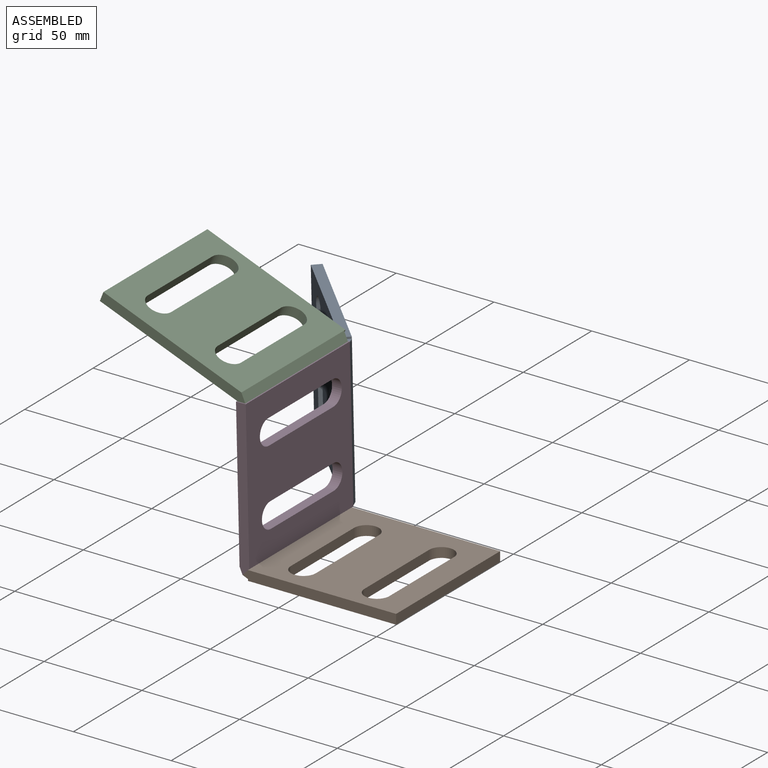
[diagram: assembled view]
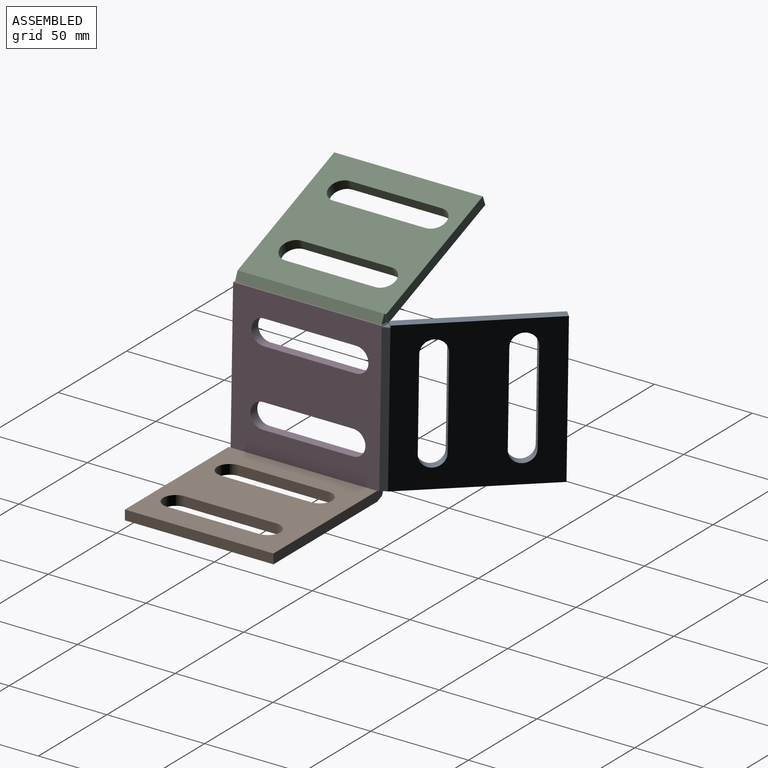
[diagram: assembled view, second angle]
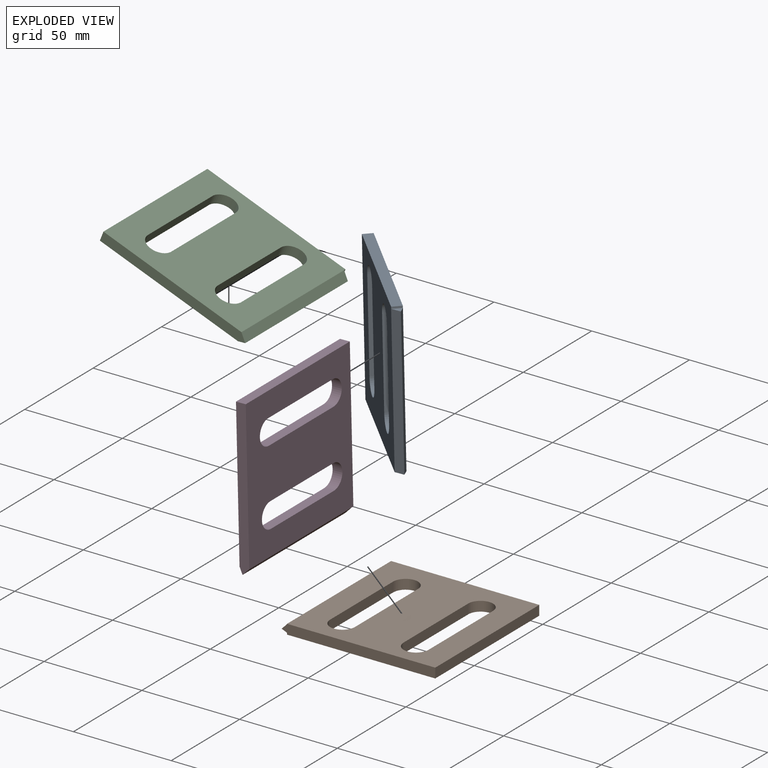
[diagram: exploded view]
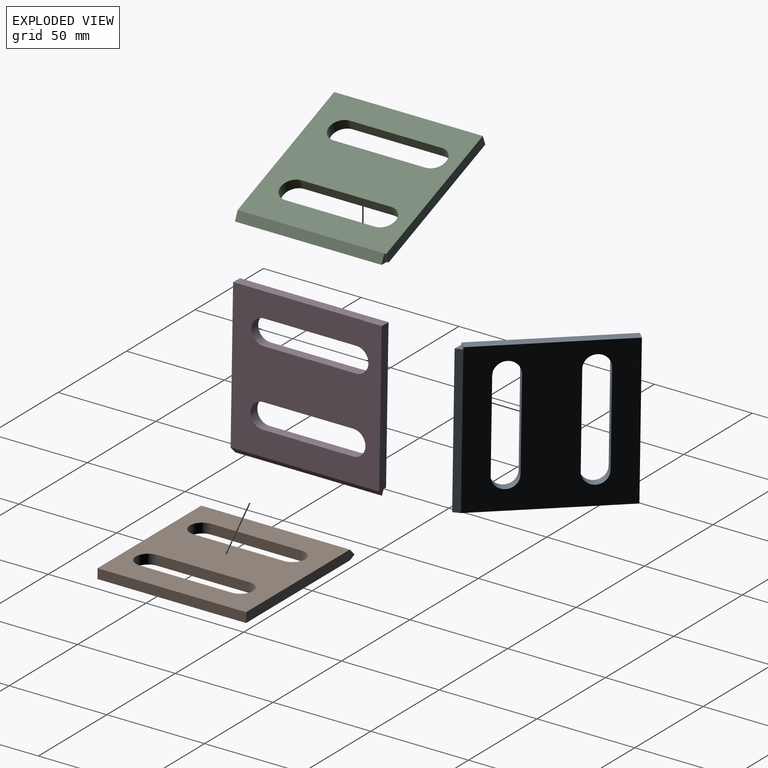
[diagram: exploded view, second angle]
ASSEMBLY  parts=4 mates=3
PART A: 18 faces, bbox 79.3x76x5 mm
  f0: plane 5x1mm, normal (-1,0,0), area 5mm2, adj f2,f4,f5,f9
  f1: plane 79.28x5.01mm, normal (0,1,0), area 387.7mm2, adj f3,f4,f5,f6,f7,f8
  f2: plane 75.8x5mm, normal (0,-1,0), area 379mm2, adj f0,f3,f4,f5
  f3: plane 76x5mm, normal (1,0,0), area 380mm2, adj f1,f2,f4,f5
  f4: plane 76x75.8mm, normal (0,0,-1), area 4323.5mm2, adj f0,f1,f2,f3,f6,f10,f11,f12
  f5: plane 76x75.8mm, normal (0,0,1), area 4323.5mm2, adj f0,f1,f2,f3,f7,f10,f11,f12
  f6: plane 75x0.01mm, normal (1,0,0), area 1mm2, adj f1,f4,f8,f9
  f7: plane 75x3.56mm, normal (-0.72,0,0.7), area 373mm2, adj f1,f5,f8,f9
  f8: plane 75x3.47mm, normal (-0.39,0,-0.92), area 282.5mm2, adj f1,f6,f7,f9
  f9: plane 5.01x3.47mm, normal (0,-1,0), area 8.7mm2, adj f0,f6,f7,f8
  f10: plane 47.16x5mm, normal (-1,0,0), area 235.8mm2, adj f4,f5,f11,f13
  f11: cylinder r=6.35mm len=12.7mm, axis (0,0,1), area 99.7mm2, adj f4,f5,f10,f12
  f12: plane 47.16x5mm, normal (1,0,0), area 235.8mm2, adj f4,f5,f11,f13
  f13: cylinder r=6.35mm len=12.7mm, axis (0,0,1), area 99.7mm2, adj f4,f5,f10,f12
  f14: plane 46.09x5mm, normal (-1,0,0), area 230.4mm2, adj f4,f5,f15,f17
  f15: cylinder r=6.35mm len=12.7mm, axis (0,0,1), area 99.7mm2, adj f4,f5,f14,f16
  f16: plane 46.09x5mm, normal (1,0,0), area 230.4mm2, adj f4,f5,f15,f17
  f17: cylinder r=6.35mm len=12.7mm, axis (0,0,1), area 99.7mm2, adj f4,f5,f14,f16
PART B: same geometry as A
PART C: same geometry as A
PART D: same geometry as A
PLACE A rot(axis=(-0.29,-0.68,0.67),149.1deg) t=(-2.54,1,0.34)mm
PLACE B t=(2.45,0,0.06)mm
PLACE C rot(axis=(-0.19,0,-0.98),180deg) t=(-1.93,-74.5,80.4)mm
PLACE D rot(axis=(-0.7,0,-0.72),180deg) t=(2.45,-75,0.06)mm
MATE revolute D.f7 <-> B.f7  axis (0.72,0,-0.7) through (0.72,-37.5,-1.72)mm
MATE revolute A.f7 <-> D.f2  axis (0,-1,0) through (-0.96,1,37.89)mm
MATE revolute C.f8 <-> D.f3  axis (0.02,0,-1) through (-1.88,-37,75.78)mm
